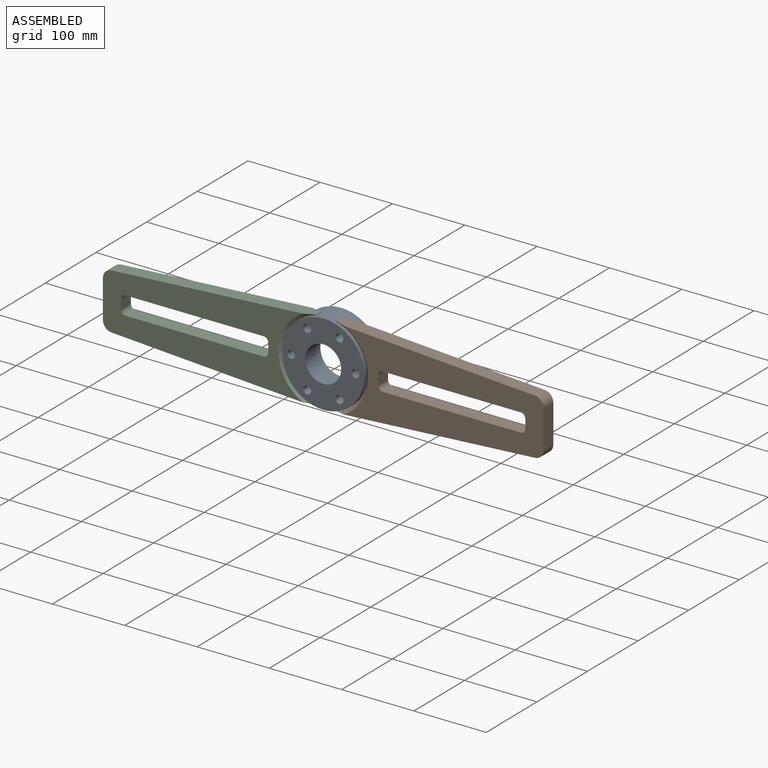
[diagram: assembled view]
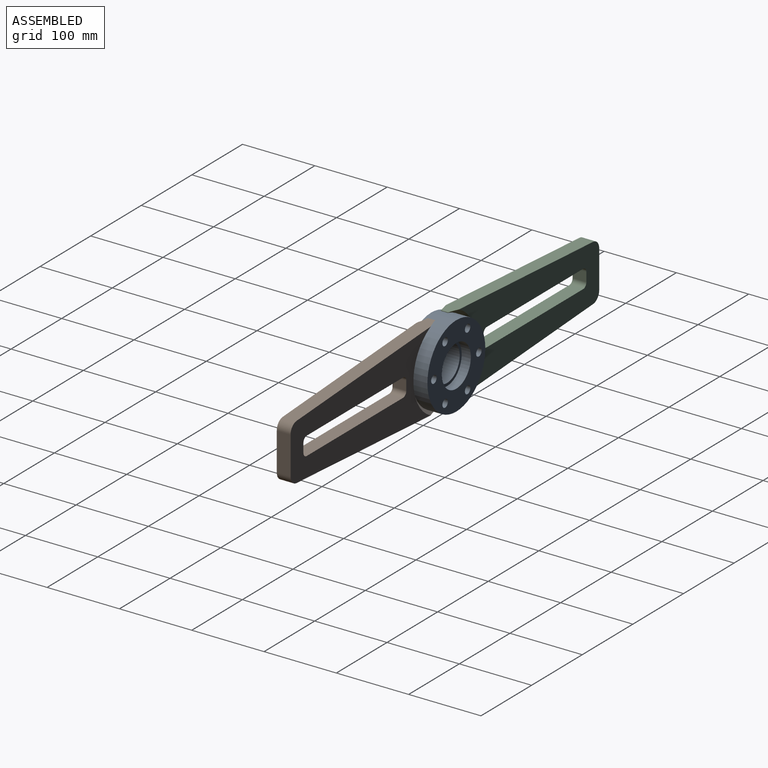
[diagram: assembled view, second angle]
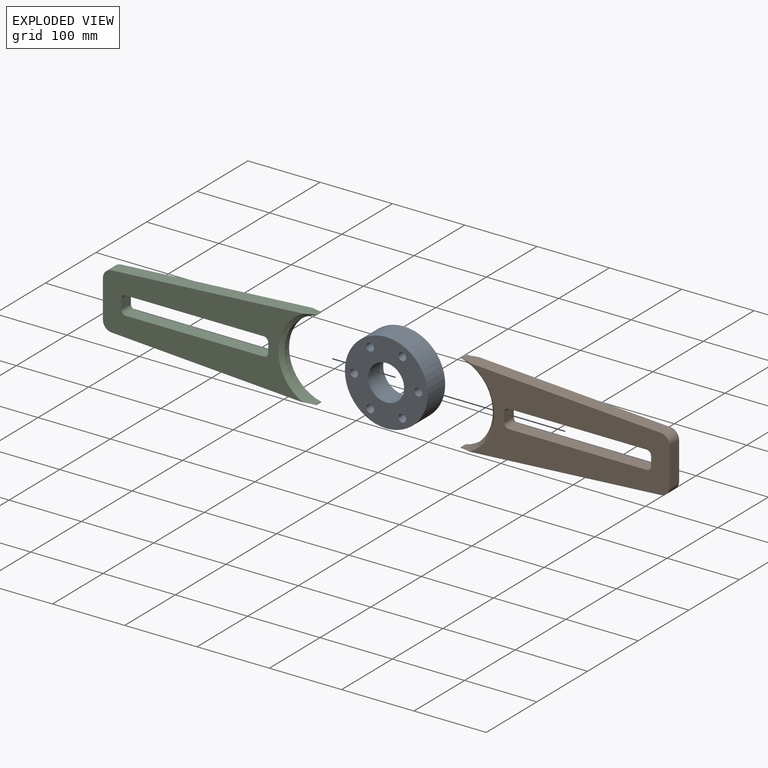
[diagram: exploded view]
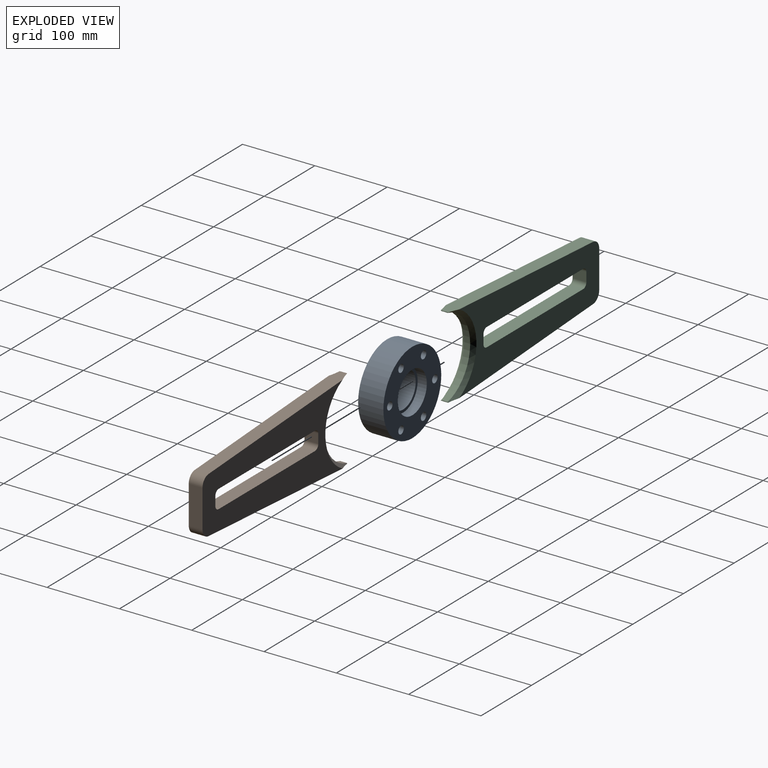
[diagram: exploded view, second angle]
ASSEMBLY  parts=3 mates=4
PART A: 12 faces, bbox 114.3x34.9x114.3 mm
  f0: cylinder r=57.15mm len=114.3mm, axis (0,1,0), area 12541mm2, adj f2,f3
  f1: cylinder r=24.77mm len=49.53mm, axis (0,1,0), area 3458.3mm2, adj f2,f5
  f2: plane 114.3x114.3mm, normal (0,-1,0), area 7792.9mm2, adj f0,f1,f6,f7,f8,f9,f10,f11
  f3: plane 114.3x114.3mm, normal (0,1,0), area 7147.6mm2, adj f0,f4,f6,f7,f8,f9,f10,f11
  f4: cylinder r=28.61mm len=57.23mm, axis (0,1,0), area 2283.2mm2, adj f3,f5
  f5: plane 57.23x57.23mm, normal (0,1,0), area 645.3mm2, adj f1,f4
  f6: cylinder r=5.36mm len=34.93mm, axis (0,1,0), area 1175.8mm2, adj f2,f3
  f7: cylinder r=5.36mm len=34.93mm, axis (0,1,0), area 1175.8mm2, adj f2,f3
  f8: cylinder r=5.36mm len=34.93mm, axis (0,1,0), area 1175.8mm2, adj f2,f3
  f9: cylinder r=5.36mm len=34.93mm, axis (0,1,0), area 1175.8mm2, adj f2,f3
  f10: cylinder r=5.36mm len=34.93mm, axis (0,1,0), area 1175.8mm2, adj f2,f3
  f11: cylinder r=5.36mm len=34.93mm, axis (0,1,0), area 1175.8mm2, adj f2,f3
PART B: 20 faces, bbox 292.3x19.1x121.4 mm
  f0: cylinder r=6.35mm len=19.05mm, axis (0,1,0), area 190mm2, adj f1,f15,f16,f17
  f1: plane 190.5x19.05mm, normal (0,0,-1), area 3629mm2, adj f0,f2,f16,f17
  f2: cylinder r=6.35mm len=19.05mm, axis (0,1,0), area 190mm2, adj f1,f3,f16,f17
  f3: plane 19.05x12.7mm, normal (-1,0,0), area 241.9mm2, adj f2,f4,f16,f17
  f4: cylinder r=6.35mm len=19.05mm, axis (0,1,0), area 190mm2, adj f3,f5,f16,f17
  f5: plane 190.5x19.05mm, normal (0,0,1), area 3629mm2, adj f4,f6,f16,f17
  f6: cylinder r=6.35mm len=19.05mm, axis (0,1,0), area 190mm2, adj f5,f15,f16,f17
  f7: cylinder r=12.7mm len=19.05mm, axis (0,1,0), area 364.8mm2, adj f8,f14,f16,f17
  f8: plane 52.35x19.05mm, normal (1,0,0), area 997.2mm2, adj f7,f9,f16,f17
  f9: cylinder r=12.7mm len=19.05mm, axis (0,1,0), area 364.8mm2, adj f8,f10,f16,f17
  f10: plane 280.2x19.05mm, normal (0.06,0,1), area 5271.3mm2, adj f9,f11,f16,f17,f18,f19
  f11: plane 10.34x0.74mm, normal (-1,0,0), area 7.1mm2, adj f10,f12,f18,f19
  f12: cylinder r=57.15mm len=111.44mm, axis (0,1,0), area 1368.4mm2, adj f11,f13,f18,f19
  f13: plane 10.34x0.74mm, normal (-1,0,0), area 7.1mm2, adj f12,f14,f18,f19
  f14: plane 280.2x19.05mm, normal (0.06,0,-1), area 5271.3mm2, adj f7,f13,f16,f17,f18,f19
  f15: plane 19.05x12.7mm, normal (1,0,0), area 241.9mm2, adj f0,f6,f16,f17
  f16: plane 276.64x110.98mm, normal (0,-1,0), area 18003.2mm2, adj f0,f1,f2,f3,f4,f5,f6,f7
  f17: plane 276.64x110.98mm, normal (0,1,0), area 18003.2mm2, adj f0,f1,f2,f3,f4,f5,f6,f7
  f18: cone r=62.23mm half-angle=45deg, axis (0,1,0), area 1049.1mm2, adj f10,f11,f12,f13,f14,f17
  f19: cone r=57.15mm half-angle=45deg, axis (0,-1,0), area 1049.1mm2, adj f10,f11,f12,f13,f14,f16
PART C: same geometry as B
PLACE A t=(-135.69,-79.09,-46.32)mm
PLACE B t=(-135.69,-94.97,-46.32)mm
PLACE C rot(axis=(0,1,0),180deg) t=(-135.69,-94.97,-46.32)mm
MATE planar A.f1 <-> C.f16  axis (0,-1,0) through (-135.69,-114.02,-46.32)mm
MATE planar B.f16 <-> A.f7  axis (0,-1,0) through (33.45,-114.02,-46.32)mm
MATE cylindrical A.f0 <-> B.f12  axis (0,1,0) through (-135.69,-96.55,-46.32)mm
MATE cylindrical C.f12 <-> A.f0  axis (0,1,0) through (-135.69,-104.49,-46.32)mm
